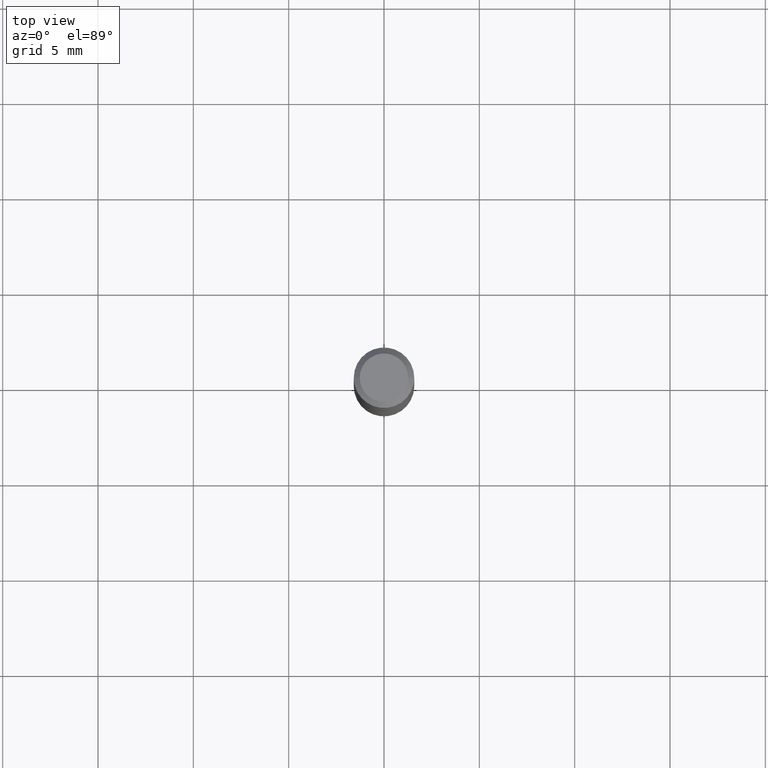
[diagram: clean part render]
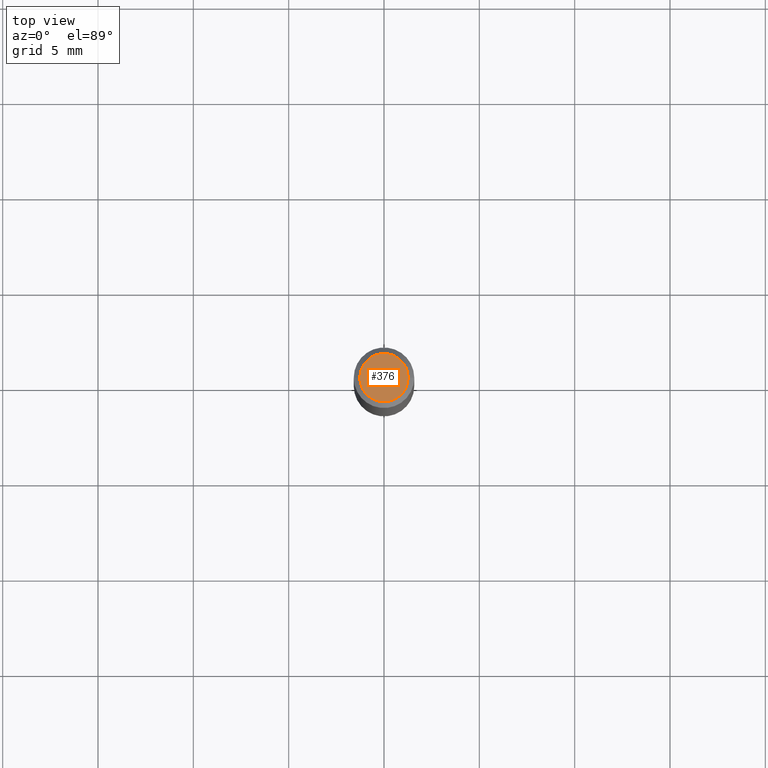
[diagram: same view with one face highlighted and labeled with its STEP entity id]
A machine part, top view. The second image highlights one B-rep face of the part: STEP entity #376.
In plain terms, the highlighted planar face has unit normal (0, -0, -1).
Its self-contained STEP definition (entity closure, byte-faithful):
#11 = CIRCLE ( 'NONE', #38, 0.04999999999999999584 ) ;
#19 = FACE_OUTER_BOUND ( 'NONE', #116, .T. ) ;
#32 = CARTESIAN_POINT ( 'NONE',  ( 3.893286209682126177E-47, -5.558580879666067980E-33, -1.592040838891559689E-18 ) ) ;
#38 = AXIS2_PLACEMENT_3D ( 'NONE', #201, #240, #309 ) ;
#60 = PLANE ( 'NONE',  #314 ) ;
#63 = VERTEX_POINT ( 'NONE', #368 ) ;
#88 = DIRECTION ( 'NONE',  ( 1.000000000000000000, -6.982962677686265922E-15, 4.875957971899673662E-29 ) ) ;
#116 = EDGE_LOOP ( 'NONE', ( #176, #430 ) ) ;
#128 = DIRECTION ( 'NONE',  ( -2.445468806185136597E-29, 3.491481338843145583E-15, 1.000000000000000000 ) ) ;
#176 = ORIENTED_EDGE ( 'NONE', *, *, #335, .T. ) ;
#201 = CARTESIAN_POINT ( 'NONE',  ( 3.893286209682126177E-47, -5.558580879666067980E-33, -1.592040838891559689E-18 ) ) ;
#205 = DIRECTION ( 'NONE',  ( -1.000000000000000000, 6.982962677686265922E-15, -4.876176775795935793E-29 ) ) ;
#240 = DIRECTION ( 'NONE',  ( -2.445468806185136597E-29, 3.491481338843145583E-15, 1.000000000000000000 ) ) ;
#308 = EDGE_CURVE ( 'NONE', #397, #63, #11, .T. ) ;
#309 = DIRECTION ( 'NONE',  ( 1.000000000000000000, -6.982962677686265922E-15, 4.875957971899673662E-29 ) ) ;
#314 = AXIS2_PLACEMENT_3D ( 'NONE', #363, #365, #205 ) ;
#335 = EDGE_CURVE ( 'NONE', #63, #397, #407, .T. ) ;
#363 = CARTESIAN_POINT ( 'NONE',  ( 1.946643104841063088E-47, -2.779290439833033990E-33, -7.960204194457798443E-19 ) ) ;
#365 = DIRECTION ( 'NONE',  ( 2.438088387897960049E-29, -3.491481338843145188E-15, -1.000000000000000000 ) ) ;
#368 = CARTESIAN_POINT ( 'NONE',  ( -0.04999999999999999584, 3.709698922520826725E-16, -1.592040838894077649E-18 ) ) ;
#376 = ADVANCED_FACE ( 'NONE', ( #19 ), #60, .F. ) ;
#397 = VERTEX_POINT ( 'NONE', #484 ) ;
#407 = CIRCLE ( 'NONE', #447, 0.04999999999999999584 ) ;
#430 = ORIENTED_EDGE ( 'NONE', *, *, #308, .T. ) ;
#447 = AXIS2_PLACEMENT_3D ( 'NONE', #32, #128, #88 ) ;
#484 = CARTESIAN_POINT ( 'NONE',  ( 0.04999999999999999584, -4.077247707424184212E-16, -1.592040838888913461E-18 ) ) ;